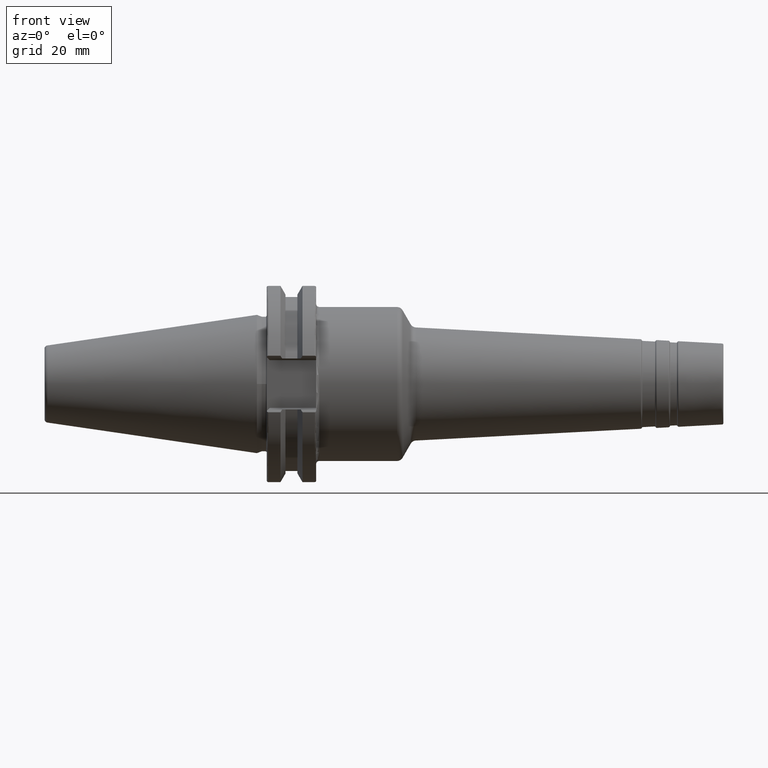
[diagram: clean part render]
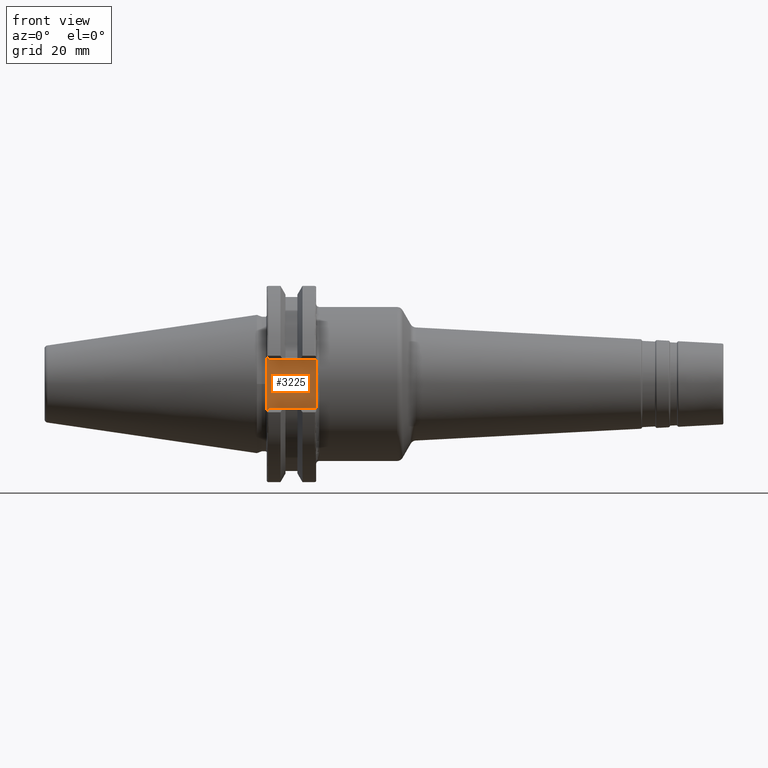
[diagram: same view with one face highlighted and labeled with its STEP entity id]
A machine part, front view. The second image highlights one B-rep face of the part: STEP entity #3225.
In plain terms, the highlighted planar face has unit normal (0, 1, 0).
Its self-contained STEP definition (entity closure, byte-faithful):
#890=DIRECTION('',(0.E0,0.E0,-1.E0));
#891=VECTOR('',#890,1.538E1);
#892=CARTESIAN_POINT('',(1.9075E1,-2.26E1,7.69E0));
#893=LINE('',#892,#891);
#894=DIRECTION('',(1.E0,0.E0,0.E0));
#895=VECTOR('',#894,1.49E1);
#896=CARTESIAN_POINT('',(4.175E0,-2.26E1,-7.69E0));
#897=LINE('',#896,#895);
#898=DIRECTION('',(0.E0,0.E0,1.E0));
#899=VECTOR('',#898,1.738E1);
#900=CARTESIAN_POINT('',(3.175E0,-2.26E1,-8.69E0));
#901=LINE('',#900,#899);
#902=DIRECTION('',(-1.E0,0.E0,0.E0));
#903=VECTOR('',#902,1.49E1);
#904=CARTESIAN_POINT('',(1.9075E1,-2.26E1,7.69E0));
#905=LINE('',#904,#903);
#1130=DIRECTION('',(-7.071067811865E-1,0.E0,7.071067811865E-1));
#1131=VECTOR('',#1130,1.414213562373E0);
#1132=CARTESIAN_POINT('',(4.175E0,-2.26E1,7.69E0));
#1133=LINE('',#1132,#1131);
#1495=DIRECTION('',(7.071067811865E-1,0.E0,7.071067811865E-1));
#1496=VECTOR('',#1495,1.414213562373E0);
#1497=CARTESIAN_POINT('',(3.175E0,-2.26E1,-8.69E0));
#1498=LINE('',#1497,#1496);
#1658=CARTESIAN_POINT('',(3.175E0,-2.26E1,8.69E0));
#1660=VERTEX_POINT('',#1658);
#1667=CARTESIAN_POINT('',(3.175E0,-2.26E1,-8.69E0));
#1669=VERTEX_POINT('',#1667);
#1682=CARTESIAN_POINT('',(4.175E0,-2.26E1,-7.69E0));
#1683=VERTEX_POINT('',#1682);
#1684=CARTESIAN_POINT('',(4.175E0,-2.26E1,7.69E0));
#1685=VERTEX_POINT('',#1684);
#1838=CARTESIAN_POINT('',(1.9075E1,-2.26E1,7.69E0));
#1839=CARTESIAN_POINT('',(1.9075E1,-2.26E1,-7.69E0));
#1840=VERTEX_POINT('',#1838);
#1841=VERTEX_POINT('',#1839);
#3208=CARTESIAN_POINT('',(0.E0,-2.26E1,0.E0));
#3209=DIRECTION('',(0.E0,1.E0,0.E0));
#3210=DIRECTION('',(1.E0,0.E0,0.E0));
#3211=AXIS2_PLACEMENT_3D('',#3208,#3209,#3210);
#3212=PLANE('',#3211);
#3213=ORIENTED_EDGE('',*,*,#3194,.T.);
#3215=ORIENTED_EDGE('',*,*,#3214,.F.);
#3217=ORIENTED_EDGE('',*,*,#3216,.F.);
#3218=ORIENTED_EDGE('',*,*,#2037,.T.);
#3220=ORIENTED_EDGE('',*,*,#3219,.F.);
#3222=ORIENTED_EDGE('',*,*,#3221,.F.);
#3223=EDGE_LOOP('',(#3213,#3215,#3217,#3218,#3220,#3222));
#3224=FACE_OUTER_BOUND('',#3223,.F.);
#3225=ADVANCED_FACE('',(#3224),#3212,.F.);
#2037=EDGE_CURVE('',#1669,#1660,#901,.T.);
#3194=EDGE_CURVE('',#1840,#1841,#893,.T.);
#3214=EDGE_CURVE('',#1683,#1841,#897,.T.);
#3216=EDGE_CURVE('',#1669,#1683,#1498,.T.);
#3219=EDGE_CURVE('',#1685,#1660,#1133,.T.);
#3221=EDGE_CURVE('',#1840,#1685,#905,.T.);